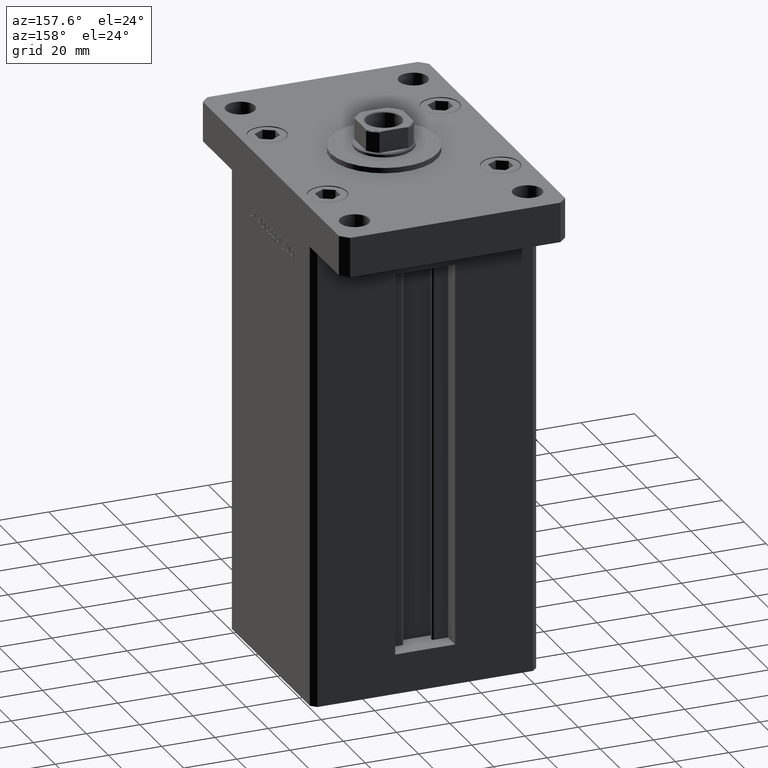
[diagram: clean part render]
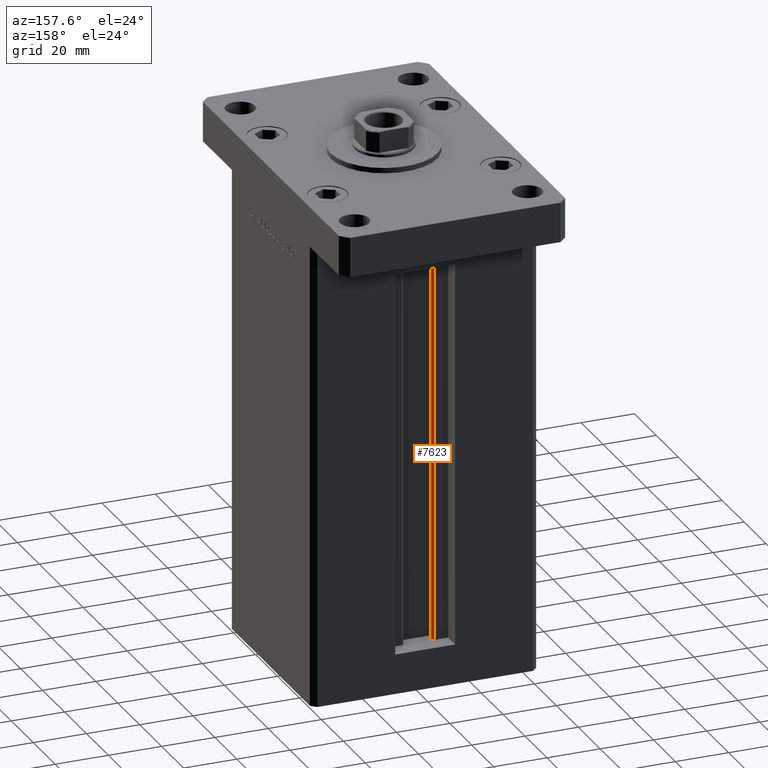
[diagram: same view with one face highlighted and labeled with its STEP entity id]
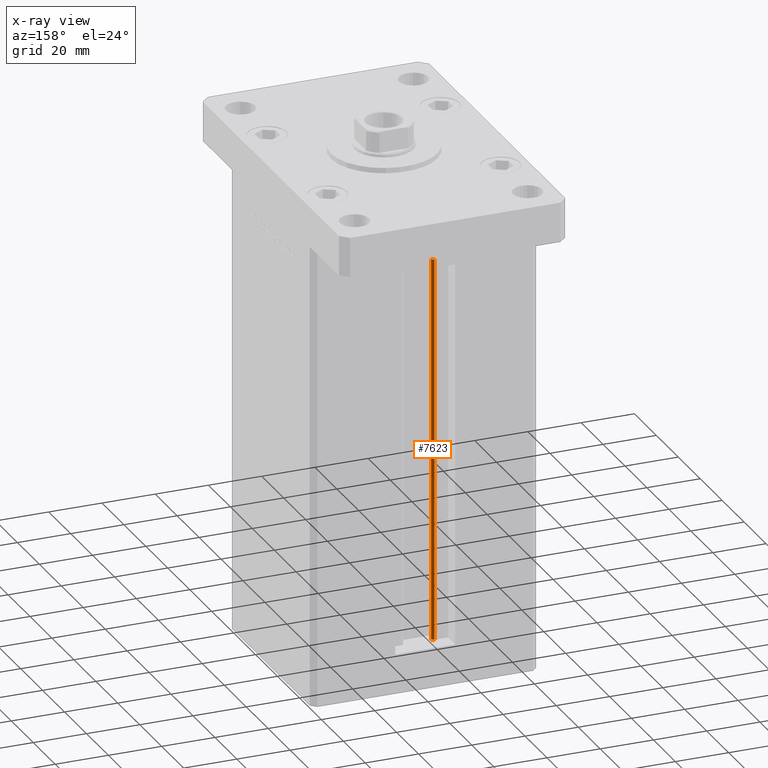
[diagram: x-ray of the same camera — body ghosted, the highlighted face saturated]
A machine part, auxiliary view. The second image highlights one B-rep face of the part: STEP entity #7623.
The next image is the same camera in x-ray: the body ghosted, the highlighted face saturated — about 1% of this face is hidden behind the body in this view.
In plain terms, the highlighted cylindrical surface (edge-blend (fillet) strip) has radius 0.9333 mm, axis along (0, 0, 1).
Its self-contained STEP definition (entity closure, byte-faithful):
#4235 = ORIENTED_EDGE ( 'NONE', *, *, #36796, .T. ) ;
#5041 = FACE_OUTER_BOUND ( 'NONE', #50209, .T. ) ;
#5302 = DIRECTION ( 'NONE',  ( 1.000000000000000000, 0.000000000000000000, 0.000000000000000000 ) ) ;
#5652 = CARTESIAN_POINT ( 'NONE',  ( -6.183333333333999704, 30.99999999999999289, 0.000000000000000000 ) ) ;
#6644 = ORIENTED_EDGE ( 'NONE', *, *, #34323, .F. ) ;
#7623 = ADVANCED_FACE ( 'NONE', ( #5041 ), #29733, .T. ) ;
#8706 = ORIENTED_EDGE ( 'NONE', *, *, #36609, .F. ) ;
#10287 = LINE ( 'NONE', #39313, #38657 ) ;
#11990 = CARTESIAN_POINT ( 'NONE',  ( -6.183333333333999704, 30.06666666666599141, 144.5000000000000000 ) ) ;
#12501 = DIRECTION ( 'NONE',  ( 1.000000000000000000, 0.000000000000000000, 0.000000000000000000 ) ) ;
#14084 = VERTEX_POINT ( 'NONE', #33654 ) ;
#15921 = CARTESIAN_POINT ( 'NONE',  ( -6.183333333333999704, 30.06666666666599141, 0.000000000000000000 ) ) ;
#17666 = AXIS2_PLACEMENT_3D ( 'NONE', #46279, #25946, #5302 ) ;
#17741 = CIRCLE ( 'NONE', #30768, 0.9333333333340015914 ) ;
#20442 = AXIS2_PLACEMENT_3D ( 'NONE', #15921, #36013, #44691 ) ;
#25946 = DIRECTION ( 'NONE',  ( -0.000000000000000000, -0.000000000000000000, 1.000000000000000000 ) ) ;
#27402 = DIRECTION ( 'NONE',  ( -0.000000000000000000, -0.000000000000000000, 1.000000000000000000 ) ) ;
#29669 = CARTESIAN_POINT ( 'NONE',  ( -5.249999999999997335, 30.06666666666599141, 0.000000000000000000 ) ) ;
#29733 = CYLINDRICAL_SURFACE ( 'NONE', #17666, 0.9333333333340015914 ) ;
#30538 = EDGE_CURVE ( 'NONE', #14084, #39608, #17741, .T. ) ;
#30768 = AXIS2_PLACEMENT_3D ( 'NONE', #11990, #36146, #12501 ) ;
#33654 = CARTESIAN_POINT ( 'NONE',  ( -6.183333333333999704, 30.99999999999999289, 144.5000000000000000 ) ) ;
#34323 = EDGE_CURVE ( 'NONE', #45542, #39608, #10287, .T. ) ;
#34582 = DIRECTION ( 'NONE',  ( -0.000000000000000000, -0.000000000000000000, 1.000000000000000000 ) ) ;
#35394 = CARTESIAN_POINT ( 'NONE',  ( -6.183333333333999704, 30.99999999999999289, 0.000000000000000000 ) ) ;
#36013 = DIRECTION ( 'NONE',  ( -0.000000000000000000, -0.000000000000000000, -1.000000000000000000 ) ) ;
#36146 = DIRECTION ( 'NONE',  ( 0.000000000000000000, 0.000000000000000000, -1.000000000000000000 ) ) ;
#36609 = EDGE_CURVE ( 'NONE', #52553, #45542, #40397, .T. ) ;
#36796 = EDGE_CURVE ( 'NONE', #52553, #14084, #42723, .T. ) ;
#38617 = VECTOR ( 'NONE', #34582, 1000.000000000000000 ) ;
#38657 = VECTOR ( 'NONE', #27402, 1000.000000000000000 ) ;
#39313 = CARTESIAN_POINT ( 'NONE',  ( -5.249999999999997335, 30.06666666666599141, 0.000000000000000000 ) ) ;
#39608 = VERTEX_POINT ( 'NONE', #43100 ) ;
#40397 = CIRCLE ( 'NONE', #20442, 0.9333333333340015914 ) ;
#42723 = LINE ( 'NONE', #35394, #38617 ) ;
#43100 = CARTESIAN_POINT ( 'NONE',  ( -5.249999999999997335, 30.06666666666599141, 144.5000000000000000 ) ) ;
#44691 = DIRECTION ( 'NONE',  ( 1.000000000000000000, 0.000000000000000000, 0.000000000000000000 ) ) ;
#45141 = ORIENTED_EDGE ( 'NONE', *, *, #30538, .T. ) ;
#45542 = VERTEX_POINT ( 'NONE', #29669 ) ;
#46279 = CARTESIAN_POINT ( 'NONE',  ( -6.183333333333999704, 30.06666666666599141, 0.000000000000000000 ) ) ;
#50209 = EDGE_LOOP ( 'NONE', ( #6644, #8706, #4235, #45141 ) ) ;
#52553 = VERTEX_POINT ( 'NONE', #5652 ) ;